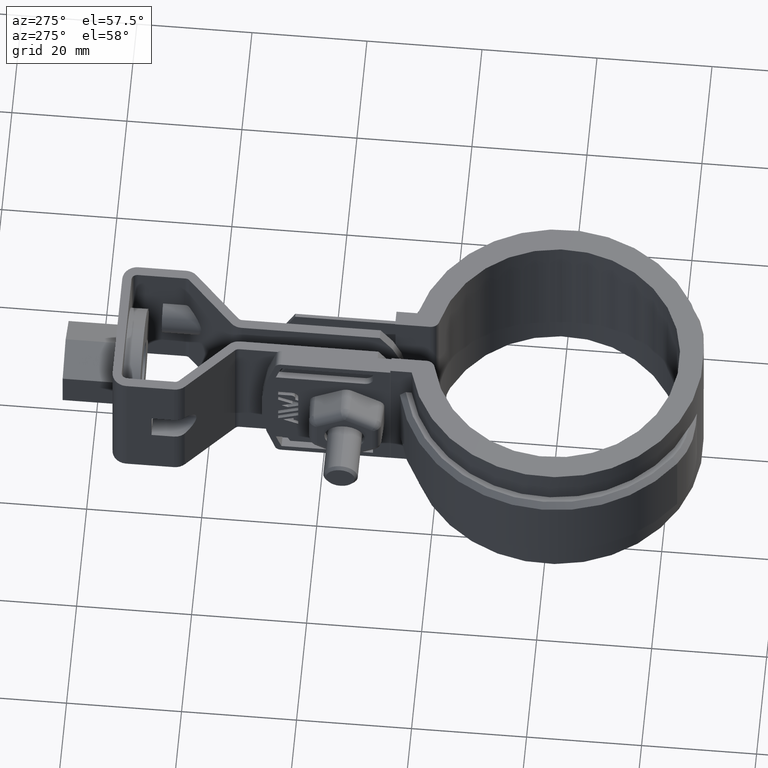
[diagram: clean part render]
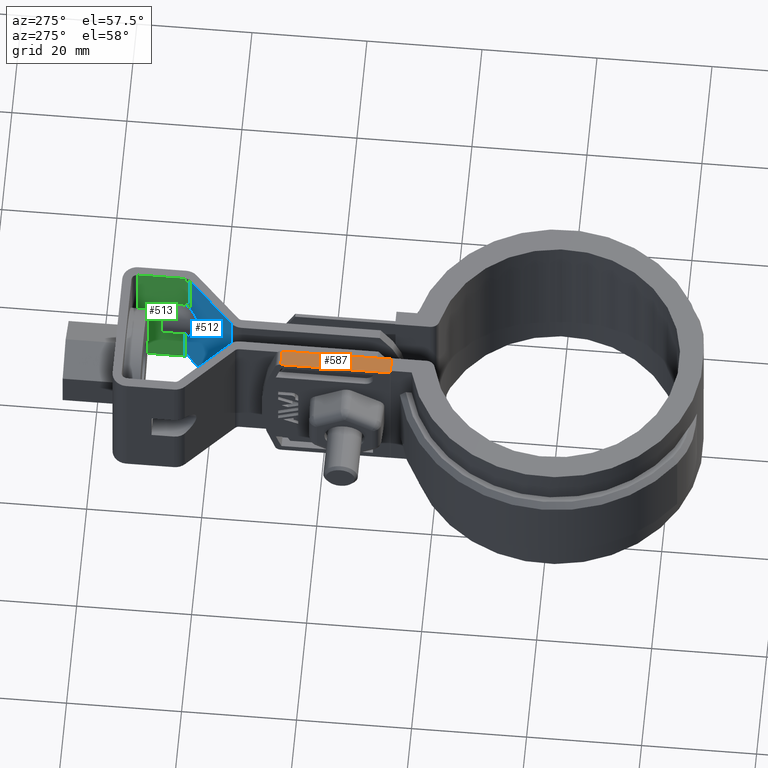
[diagram: same view with three faces highlighted in distinct colors, each labeled with its STEP entity id]
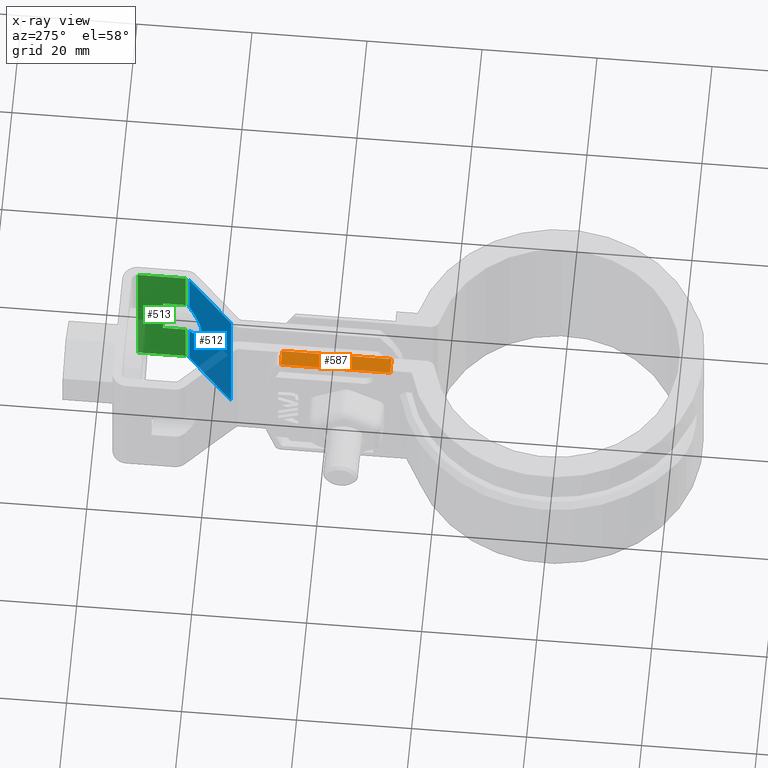
[diagram: x-ray of the same camera — body ghosted, the three highlighted faces saturated]
A machine part, auxiliary view with three faces highlighted in distinct colors.
The next image is the same camera in x-ray (body ghosted, the three faces saturated) — at least one of them is partly hidden behind the body in this view.
Their STEP definitions:

[orange] entity #587 — the highlighted planar face has unit normal (0, 0, -1).
#587 = ADVANCED_FACE( '', ( #1214 ), #1215, .F. );
#1214 = FACE_OUTER_BOUND( '', #2355, .T. );
#1215 = PLANE( '', #2356 );
#2355 = EDGE_LOOP( '', ( #6147, #6148, #6149, #6150 ) );
#2356 = AXIS2_PLACEMENT_3D( '', #6151, #6152, #6153 );
#6147 = ORIENTED_EDGE( '', *, *, #7786, .F. );
#6148 = ORIENTED_EDGE( '', *, *, #7815, .T. );
#6149 = ORIENTED_EDGE( '', *, *, #7692, .F. );
#6150 = ORIENTED_EDGE( '', *, *, #7814, .T. );
#6151 = CARTESIAN_POINT( '', ( -6.30000000000003, 28.4025110199732, 1.19999999999985 ) );
#6152 = DIRECTION( '', ( 6.23565794846649E-020, 1.25318295324441E-016, -1.00000000000000 ) );
#6153 = DIRECTION( '', ( -5.53681883903847E-017, -1.00000000000000, -1.25318295324441E-016 ) );
#7692 = EDGE_CURVE( '', #9164, #9166, #9167, .T. );
#7786 = EDGE_CURVE( '', #9342, #9344, #9345, .T. );
#7814 = EDGE_CURVE( '', #9164, #9344, #9381, .T. );
#7815 = EDGE_CURVE( '', #9342, #9166, #9382, .T. );
#9164 = VERTEX_POINT( '', #13667 );
#9166 = VERTEX_POINT( '', #13670 );
#9167 = LINE( '', #13671, #13672 );
#9342 = VERTEX_POINT( '', #13923 );
#9344 = VERTEX_POINT( '', #13925 );
#9345 = LINE( '', #13926, #13927 );
#9381 = LINE( '', #13989, #13990 );
#9382 = LINE( '', #13991, #13992 );
#13667 = CARTESIAN_POINT( '', ( -6.30000000000003, 28.4025110199732, 1.19999999999983 ) );
#13670 = CARTESIAN_POINT( '', ( -6.30000000000003, 47.4459672556638, 1.19999999999987 ) );
#13671 = CARTESIAN_POINT( '', ( -6.30000000000003, 28.4025110199732, 1.19999999999985 ) );
#13672 = VECTOR( '', #15231, 1000.00000000000 );
#13923 = CARTESIAN_POINT( '', ( -3.50000000000003, 47.4459672556638, 1.19999999999987 ) );
#13925 = CARTESIAN_POINT( '', ( -3.50000000000003, 28.4025110199732, 1.19999999999987 ) );
#13926 = CARTESIAN_POINT( '', ( -3.50000000000003, 47.6938011722037, 1.19999999999987 ) );
#13927 = VECTOR( '', #15359, 1000.00000000000 );
#13989 = CARTESIAN_POINT( '', ( -6.30000000000003, 28.4025110199732, 1.19999999999983 ) );
#13990 = VECTOR( '', #15389, 1000.00000000000 );
#13991 = CARTESIAN_POINT( '', ( -3.50000000000003, 47.4459672556638, 1.19999999999987 ) );
#13992 = VECTOR( '', #15390, 1000.00000000000 );
#15231 = DIRECTION( '', ( 5.56970201441962E-017, 1.00000000000000, 1.25318295324441E-016 ) );
#15359 = DIRECTION( '', ( -5.56970201441962E-017, -1.00000000000000, -5.55111512312578E-017 ) );
#15389 = DIRECTION( '', ( 1.00000000000000, -5.53681883903847E-017, 6.23565794846579E-020 ) );
#15390 = DIRECTION( '', ( -1.00000000000000, -1.77553823037274E-016, 1.31611162143792E-020 ) );

[blue] entity #512 — the highlighted planar face has unit normal (-0.6983, 0.7158, 0).
#512 = ADVANCED_FACE( '', ( #1034 ), #1035, .T. );
#1034 = FACE_OUTER_BOUND( '', #2175, .T. );
#1035 = PLANE( '', #2176 );
#2175 = EDGE_LOOP( '', ( #5377, #5378, #5379, #5380, #5381, #5382 ) );
#2176 = AXIS2_PLACEMENT_3D( '', #5383, #5384, #5385 );
#5377 = ORIENTED_EDGE( '', *, *, #7428, .F. );
#5378 = ORIENTED_EDGE( '', *, *, #7481, .T. );
#5379 = ORIENTED_EDGE( '', *, *, #7464, .T. );
#5380 = ORIENTED_EDGE( '', *, *, #7480, .T. );
#5381 = ORIENTED_EDGE( '', *, *, #7482, .T. );
#5382 = ORIENTED_EDGE( '', *, *, #7483, .F. );
#5383 = CARTESIAN_POINT( '', ( 10.3483238355309, 64.7825348243746, -2.54379850517239E-011 ) );
#5384 = DIRECTION( '', ( -0.698323835530499, 0.715781964518506, 8.62257544975940E-014 ) );
#5385 = DIRECTION( '', ( 0.715781964518506, 0.698323835530499, 9.22243984441948E-014 ) );
#7428 = EDGE_CURVE( '', #8688, #8690, #8691, .T. );
#7464 = EDGE_CURVE( '', #8759, #8756, #8760, .T. );
#7480 = EDGE_CURVE( '', #8756, #8781, #8783, .T. );
#7481 = EDGE_CURVE( '', #8688, #8759, #8784, .T. );
#7482 = EDGE_CURVE( '', #8781, #8785, #8786, .T. );
#7483 = EDGE_CURVE( '', #8690, #8785, #8787, .F. );
#8688 = VERTEX_POINT( '', #12947 );
#8690 = VERTEX_POINT( '', #12949 );
#8691 = LINE( '', #12950, #12951 );
#8756 = VERTEX_POINT( '', #13049 );
#8759 = VERTEX_POINT( '', #13057 );
#8760 = ELLIPSE( '', #13058, 5.93756228945901, 4.24999999999996 );
#8781 = VERTEX_POINT( '', #13096 );
#8783 = LINE( '', #13098, #13099 );
#8784 = LINE( '', #13100, #13101 );
#8785 = VERTEX_POINT( '', #13102 );
#8786 = LINE( '', #13103, #13104 );
#8787 = LINE( '', #13105, #13106 );
#12947 = CARTESIAN_POINT( '', ( 10.3483238355309, 64.7825348243746, -2.54379850517239E-011 ) );
#12949 = CARTESIAN_POINT( '', ( 2.18435802762107, 56.8176905020473, -2.64926969251178E-011 ) );
#12950 = CARTESIAN_POINT( '', ( 10.3483238355309, 64.7825348243746, -2.54379850517239E-011 ) );
#12951 = VECTOR( '', #14849, 1000.00000000000 );
#13049 = CARTESIAN_POINT( '', ( 10.3483238355309, 64.7825348243766, -16.3008061994374 ) );
#13057 = CARTESIAN_POINT( '', ( 10.3483238355309, 64.7825348243757, -8.69919380061346 ) );
#13058 = AXIS2_PLACEMENT_3D( '', #14912, #14913, #14914 );
#13096 = CARTESIAN_POINT( '', ( 10.3483238355310, 64.7825348243777, -25.0000000000254 ) );
#13098 = CARTESIAN_POINT( '', ( 10.3483238355309, 64.7825348243746, -2.54379850517239E-011 ) );
#13099 = VECTOR( '', #14933, 1000.00000000000 );
#13100 = CARTESIAN_POINT( '', ( 10.3483238355309, 64.7825348243746, -2.54379850517239E-011 ) );
#13101 = VECTOR( '', #14934, 1000.00000000000 );
#13102 = CARTESIAN_POINT( '', ( 2.18435802762122, 56.8176905020505, -25.0000000000265 ) );
#13103 = CARTESIAN_POINT( '', ( 10.3483238355310, 64.7825348243777, -25.0000000000254 ) );
#13104 = VECTOR( '', #14935, 1000.00000000000 );
#13105 = CARTESIAN_POINT( '', ( 2.18435802762107, 56.8176905020473, -2.64926969251178E-011 ) );
#13106 = VECTOR( '', #14936, 1000.00000000000 );
#14849 = DIRECTION( '', ( -0.715781964518503, -0.698323835530503, -9.22243984441952E-014 ) );
#14912 = CARTESIAN_POINT( '', ( 12.2500000000004, 66.6378285575768, -12.5000000000252 ) );
#14913 = DIRECTION( '', ( 0.698323835530500, -0.715781964518506, -8.62257544975940E-014 ) );
#14914 = DIRECTION( '', ( 0.715781964518506, 0.698323835530500, 9.22243984441948E-014 ) );
#14933 = DIRECTION( '', ( 5.79906149265214E-015, 1.26121335597421E-013, -1.00000000000000 ) );
#14934 = DIRECTION( '', ( 5.79906149265214E-015, 1.26121335597421E-013, -1.00000000000000 ) );
#14935 = DIRECTION( '', ( -0.715781964518503, -0.698323835530503, -9.22243984441952E-014 ) );
#14936 = DIRECTION( '', ( -5.86029181034326E-015, -1.26181072489967E-013, 1.00000000000000 ) );

[green] entity #513 — the highlighted planar face has unit normal (-1, -0, -0).
#513 = ADVANCED_FACE( '', ( #1036 ), #1037, .T. );
#1036 = FACE_OUTER_BOUND( '', #2177, .T. );
#1037 = PLANE( '', #2178 );
#2177 = EDGE_LOOP( '', ( #5386, #5387, #5388, #5389, #5390, #5391, #5392, #5393, #5394, #5395 ) );
#2178 = AXIS2_PLACEMENT_3D( '', #5396, #5397, #5398 );
#5386 = ORIENTED_EDGE( '', *, *, #7468, .T. );
#5387 = ORIENTED_EDGE( '', *, *, #7470, .T. );
#5388 = ORIENTED_EDGE( '', *, *, #7472, .T. );
#5389 = ORIENTED_EDGE( '', *, *, #7469, .T. );
#5390 = ORIENTED_EDGE( '', *, *, #7466, .T. );
#5391 = ORIENTED_EDGE( '', *, *, #7484, .F. );
#5392 = ORIENTED_EDGE( '', *, *, #7426, .F. );
#5393 = ORIENTED_EDGE( '', *, *, #7485, .T. );
#5394 = ORIENTED_EDGE( '', *, *, #7486, .T. );
#5395 = ORIENTED_EDGE( '', *, *, #7478, .F. );
#5396 = CARTESIAN_POINT( '', ( 10.6500000000003, 73.8025110200030, -2.43000064514831E-011 ) );
#5397 = DIRECTION( '', ( -1.00000000000000, -7.98723925267201E-016, -5.79906149265224E-015 ) );
#5398 = DIRECTION( '', ( -7.98723925267932E-016, 1.00000000000000, 1.26121335597421E-013 ) );
#7426 = EDGE_CURVE( '', #8684, #8686, #8687, .T. );
#7466 = EDGE_CURVE( '', #8763, #8761, #8764, .F. );
#7468 = EDGE_CURVE( '', #8757, #8765, #8767, .T. );
#7469 = EDGE_CURVE( '', #8749, #8763, #8768, .T. );
#7470 = EDGE_CURVE( '', #8765, #8747, #8769, .T. );
#7472 = EDGE_CURVE( '', #8747, #8749, #8771, .T. );
#7478 = EDGE_CURVE( '', #8757, #8779, #8780, .T. );
#7484 = EDGE_CURVE( '', #8686, #8761, #8788, .T. );
#7485 = EDGE_CURVE( '', #8684, #8789, #8790, .T. );
#7486 = EDGE_CURVE( '', #8789, #8779, #8791, .T. );
#8684 = VERTEX_POINT( '', #12942 );
#8686 = VERTEX_POINT( '', #12944 );
#8687 = LINE( '', #12945, #12946 );
#8747 = VERTEX_POINT( '', #13032 );
#8749 = VERTEX_POINT( '', #13034 );
#8757 = VERTEX_POINT( '', #13050 );
#8761 = VERTEX_POINT( '', #13059 );
#8763 = VERTEX_POINT( '', #13066 );
#8764 = LINE( '', #13067, #13068 );
#8765 = VERTEX_POINT( '', #13069 );
#8767 = LINE( '', #13071, #13072 );
#8768 = LINE( '', #13073, #13074 );
#8769 = LINE( '', #13075, #13076 );
#8771 = LINE( '', #13079, #13080 );
#8779 = VERTEX_POINT( '', #13093 );
#8780 = LINE( '', #13094, #13095 );
#8788 = LINE( '', #13107, #13108 );
#8789 = VERTEX_POINT( '', #13109 );
#8790 = LINE( '', #13110, #13111 );
#8791 = LINE( '', #13112, #13113 );
#12942 = CARTESIAN_POINT( '', ( 10.6500000000003, 73.8025110200030, -2.43000064514831E-011 ) );
#12944 = CARTESIAN_POINT( '', ( 10.6500000000003, 65.4983167888931, -2.53408405370692E-011 ) );
#12945 = CARTESIAN_POINT( '', ( 10.6500000000003, 73.8025110200030, -2.43000064514831E-011 ) );
#12946 = VECTOR( '', #14845, 1000.00000000000 );
#13032 = CARTESIAN_POINT( '', ( 10.6500000000004, 69.4025110200046, -14.6124630174526 ) );
#13034 = CARTESIAN_POINT( '', ( 10.6500000000004, 69.4025110200041, -10.3875369825971 ) );
#13050 = CARTESIAN_POINT( '', ( 10.6500000000004, 65.4983167888951, -16.4373214245473 ) );
#13059 = CARTESIAN_POINT( '', ( 10.6500000000004, 65.4983167888941, -8.56267857550334 ) );
#13066 = CARTESIAN_POINT( '', ( 10.6500000000004, 69.4025110200038, -8.56267857550287 ) );
#13067 = CARTESIAN_POINT( '', ( 10.6500000000004, 54.4025110200041, -8.56267857550474 ) );
#13068 = VECTOR( '', #14915, 1000.00000000000 );
#13069 = CARTESIAN_POINT( '', ( 10.6500000000004, 69.4025110200049, -16.4373214245468 ) );
#13071 = CARTESIAN_POINT( '', ( 10.6500000000005, 54.4025110200051, -16.4373214245487 ) );
#13072 = VECTOR( '', #14919, 1000.00000000000 );
#13073 = CARTESIAN_POINT( '', ( 10.6500000000003, 69.4025110200030, -2.48551179637957E-011 ) );
#13074 = VECTOR( '', #14920, 1000.00000000000 );
#13075 = CARTESIAN_POINT( '', ( 10.6500000000003, 69.4025110200030, -2.48551179637957E-011 ) );
#13076 = VECTOR( '', #14921, 1000.00000000000 );
#13079 = CARTESIAN_POINT( '', ( 10.6500000000003, 69.4025110200030, -2.48551179637957E-011 ) );
#13080 = VECTOR( '', #14923, 1000.00000000000 );
#13093 = CARTESIAN_POINT( '', ( 10.6500000000005, 65.4983167888962, -25.0000000000253 ) );
#13094 = CARTESIAN_POINT( '', ( 10.6500000000003, 65.4983167888931, -2.53408405370692E-011 ) );
#13095 = VECTOR( '', #14929, 1000.00000000000 );
#13107 = CARTESIAN_POINT( '', ( 10.6500000000003, 65.4983167888931, -2.53408405370692E-011 ) );
#13108 = VECTOR( '', #14937, 1000.00000000000 );
#13109 = CARTESIAN_POINT( '', ( 10.6500000000005, 73.8025110200062, -25.0000000000243 ) );
#13110 = CARTESIAN_POINT( '', ( 10.6500000000003, 73.8025110200030, -2.43000064514831E-011 ) );
#13111 = VECTOR( '', #14938, 1000.00000000000 );
#13112 = CARTESIAN_POINT( '', ( 10.6500000000005, 73.8025110200062, -25.0000000000243 ) );
#13113 = VECTOR( '', #14939, 1000.00000000000 );
#14845 = DIRECTION( '', ( 7.98723925267933E-016, -1.00000000000000, -1.26121335597421E-013 ) );
#14915 = DIRECTION( '', ( -7.98723925267933E-016, 1.00000000000000, 1.26121335597421E-013 ) );
#14919 = DIRECTION( '', ( -7.98723925267933E-016, 1.00000000000000, 1.26121335597421E-013 ) );
#14920 = DIRECTION( '', ( -5.79906149265214E-015, -1.26121335597421E-013, 1.00000000000000 ) );
#14921 = DIRECTION( '', ( -5.79906149265214E-015, -1.26121335597421E-013, 1.00000000000000 ) );
#14923 = DIRECTION( '', ( -5.79906149265214E-015, -1.26121335597421E-013, 1.00000000000000 ) );
#14929 = DIRECTION( '', ( 5.79906149265214E-015, 1.26121335597421E-013, -1.00000000000000 ) );
#14937 = DIRECTION( '', ( 5.79906149265214E-015, 1.26121335597421E-013, -1.00000000000000 ) );
#14938 = DIRECTION( '', ( 5.79906149265214E-015, 1.26121335597421E-013, -1.00000000000000 ) );
#14939 = DIRECTION( '', ( 7.98723925267933E-016, -1.00000000000000, -1.26121335597421E-013 ) );